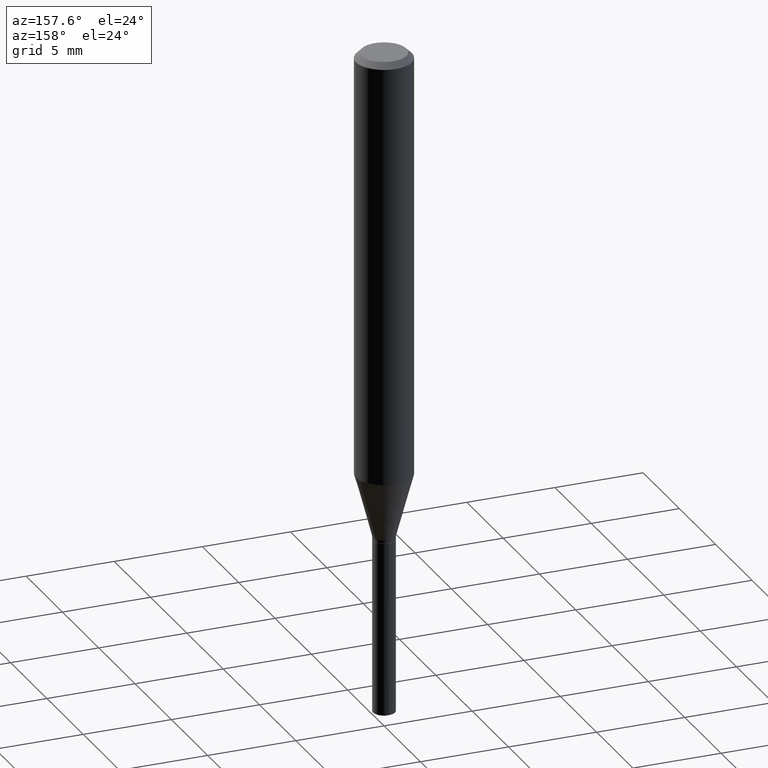
[diagram: clean part render]
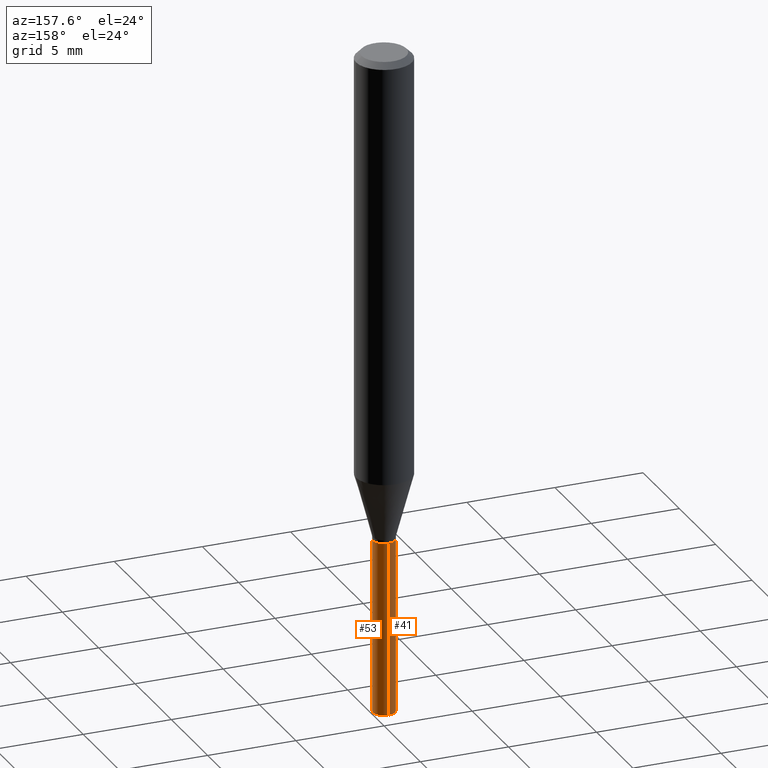
[diagram: same view with one multi-face feature highlighted, each face labeled with its STEP entity id]
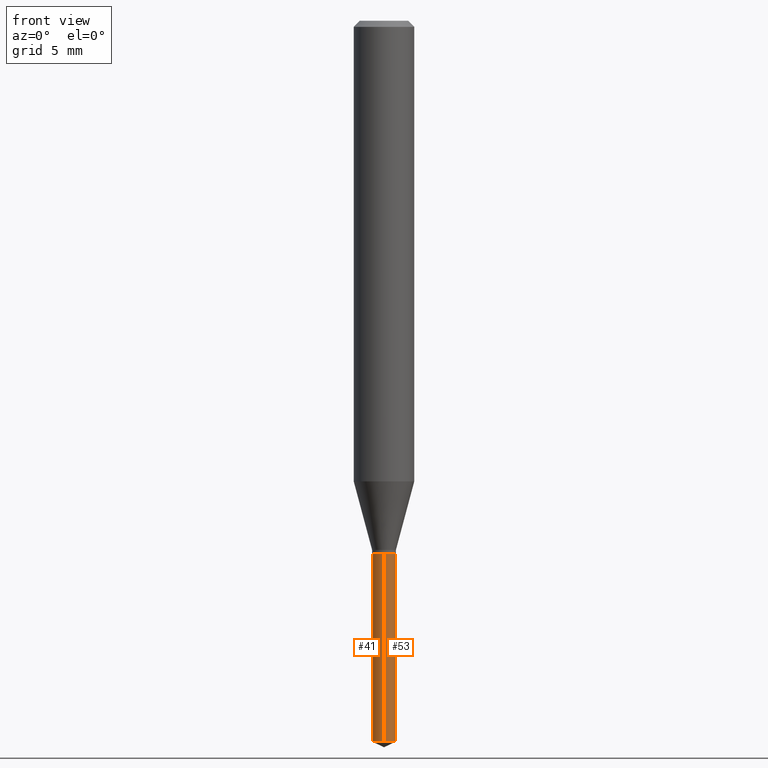
[diagram: same view with one multi-face feature highlighted, each face labeled with its STEP entity id]
A machine part, auxiliary view. The highlighted faces form ONE feature: a constant-radius fillet chain: 2 tangent blend faces with common blend radius 0.6248 mm. The faces share edges in the B-rep.
A second angle (front view) of the same feature is appended — it is thin or edge-on in the first view.
Their STEP definitions:
[1] entity #53 (Cylinder):
#5 = FACE_OUTER_BOUND ( 'NONE', #406, .T. ) ;
#6 = CYLINDRICAL_SURFACE ( 'NONE', #401, 0.02460000000000000034 ) ;
#12 = VECTOR ( 'NONE', #434, 39.37007874015748143 ) ;
#24 = VERTEX_POINT ( 'NONE', #418 ) ;
#28 = CIRCLE ( 'NONE', #308, 0.02460000000000000034 ) ;
#46 = LINE ( 'NONE', #429, #140 ) ;
#53 = ADVANCED_FACE ( 'NONE', ( #5 ), #6, .T. ) ;
#61 = CARTESIAN_POINT ( 'NONE',  ( 3.640123971338594615E-29, -5.197209093590707944E-15, -1.488528831609386982 ) ) ;
#73 = AXIS2_PLACEMENT_3D ( 'NONE', #354, #468, #120 ) ;
#74 = VERTEX_POINT ( 'NONE', #186 ) ;
#99 = EDGE_CURVE ( 'NONE', #24, #250, #46, .T. ) ;
#110 = DIRECTION ( 'NONE',  ( -6.982962677686265922E-15, -1.000000000000000000, 5.552536572488340164E-15 ) ) ;
#120 = DIRECTION ( 'NONE',  ( -6.982962677686265922E-15, -1.000000000000000000, 5.552536572488340164E-15 ) ) ;
#126 = CARTESIAN_POINT ( 'NONE',  ( 1.747935129970210836E-16, 0.02459999999999615966, -1.100000000000000089 ) ) ;
#140 = VECTOR ( 'NONE', #460, 39.37007874015748143 ) ;
#186 = CARTESIAN_POINT ( 'NONE',  ( 1.747935129970210343E-16, 0.02459999999999480658, -1.488528831609386982 ) ) ;
#189 = EDGE_CURVE ( 'NONE', #250, #254, #310, .T. ) ;
#205 = ORIENTED_EDGE ( 'NONE', *, *, #189, .F. ) ;
#206 = DIRECTION ( 'NONE',  ( -6.982962677686265922E-15, -1.000000000000000000, 0.000000000000000000 ) ) ;
#250 = VERTEX_POINT ( 'NONE', #305 ) ;
#254 = VERTEX_POINT ( 'NONE', #126 ) ;
#260 = EDGE_CURVE ( 'NONE', #24, #74, #28, .T. ) ;
#281 = CARTESIAN_POINT ( 'NONE',  ( 1.747935129970115187E-16, 0.02459999999999615966, -1.100000000000000089 ) ) ;
#305 = CARTESIAN_POINT ( 'NONE',  ( -1.717808818710552189E-16, -0.02460000000000384102, -1.099999999999999867 ) ) ;
#308 = AXIS2_PLACEMENT_3D ( 'NONE', #61, #405, #206 ) ;
#310 = CIRCLE ( 'NONE', #73, 0.02460000000000000034 ) ;
#331 = EDGE_CURVE ( 'NONE', #74, #254, #479, .T. ) ;
#354 = CARTESIAN_POINT ( 'NONE',  ( 2.690015686803650369E-29, -3.840629472727460101E-15, -1.100000000000000089 ) ) ;
#400 = ORIENTED_EDGE ( 'NONE', *, *, #331, .T. ) ;
#401 = AXIS2_PLACEMENT_3D ( 'NONE', #414, #456, #110 ) ;
#405 = DIRECTION ( 'NONE',  ( -2.445399690415121530E-29, 3.491580316559632610E-15, 1.000000000000000000 ) ) ;
#406 = EDGE_LOOP ( 'NONE', ( #437, #400, #205, #488 ) ) ;
#414 = CARTESIAN_POINT ( 'NONE',  ( 2.690015686803650369E-29, -3.840629472727460101E-15, -1.100000000000000089 ) ) ;
#418 = CARTESIAN_POINT ( 'NONE',  ( -1.717808818710457772E-16, -0.02460000000000520451, -1.488528831609386982 ) ) ;
#429 = CARTESIAN_POINT ( 'NONE',  ( -1.717808818710552189E-16, -0.02460000000000384102, -1.099999999999999867 ) ) ;
#434 = DIRECTION ( 'NONE',  ( -2.445399690415121810E-29, 3.491580316559632610E-15, 1.000000000000000000 ) ) ;
#437 = ORIENTED_EDGE ( 'NONE', *, *, #260, .T. ) ;
#456 = DIRECTION ( 'NONE',  ( -2.445399690415121530E-29, 3.491580316559632610E-15, 1.000000000000000000 ) ) ;
#460 = DIRECTION ( 'NONE',  ( -2.445399690415121810E-29, 3.491580316559632610E-15, 1.000000000000000000 ) ) ;
#468 = DIRECTION ( 'NONE',  ( -2.445399690415121530E-29, 3.491580316559632610E-15, 1.000000000000000000 ) ) ;
#479 = LINE ( 'NONE', #281, #12 ) ;
#488 = ORIENTED_EDGE ( 'NONE', *, *, #99, .F. ) ;
[2] entity #41 (Cylinder):
#12 = VECTOR ( 'NONE', #434, 39.37007874015748143 ) ;
#14 = EDGE_CURVE ( 'NONE', #74, #24, #143, .T. ) ;
#21 = AXIS2_PLACEMENT_3D ( 'NONE', #259, #224, #150 ) ;
#24 = VERTEX_POINT ( 'NONE', #418 ) ;
#35 = EDGE_CURVE ( 'NONE', #254, #250, #118, .T. ) ;
#41 = ADVANCED_FACE ( 'NONE', ( #380 ), #453, .T. ) ;
#46 = LINE ( 'NONE', #429, #140 ) ;
#74 = VERTEX_POINT ( 'NONE', #186 ) ;
#85 = ORIENTED_EDGE ( 'NONE', *, *, #331, .F. ) ;
#99 = EDGE_CURVE ( 'NONE', #24, #250, #46, .T. ) ;
#118 = CIRCLE ( 'NONE', #195, 0.02460000000000000034 ) ;
#126 = CARTESIAN_POINT ( 'NONE',  ( 1.747935129970210836E-16, 0.02459999999999615966, -1.100000000000000089 ) ) ;
#136 = EDGE_LOOP ( 'NONE', ( #85, #336, #279, #327 ) ) ;
#140 = VECTOR ( 'NONE', #460, 39.37007874015748143 ) ;
#143 = CIRCLE ( 'NONE', #304, 0.02460000000000000034 ) ;
#150 = DIRECTION ( 'NONE',  ( -6.982962677686265922E-15, -1.000000000000000000, 5.552536572488340164E-15 ) ) ;
#186 = CARTESIAN_POINT ( 'NONE',  ( 1.747935129970210343E-16, 0.02459999999999480658, -1.488528831609386982 ) ) ;
#195 = AXIS2_PLACEMENT_3D ( 'NONE', #215, #379, #373 ) ;
#215 = CARTESIAN_POINT ( 'NONE',  ( 2.690015686803650369E-29, -3.840629472727460101E-15, -1.100000000000000089 ) ) ;
#222 = CARTESIAN_POINT ( 'NONE',  ( 3.640123971338594615E-29, -5.197209093590707944E-15, -1.488528831609386982 ) ) ;
#224 = DIRECTION ( 'NONE',  ( -2.445399690415121530E-29, 3.491580316559632610E-15, 1.000000000000000000 ) ) ;
#250 = VERTEX_POINT ( 'NONE', #305 ) ;
#254 = VERTEX_POINT ( 'NONE', #126 ) ;
#259 = CARTESIAN_POINT ( 'NONE',  ( 2.690015686803650369E-29, -3.840629472727460101E-15, -1.100000000000000089 ) ) ;
#279 = ORIENTED_EDGE ( 'NONE', *, *, #99, .T. ) ;
#281 = CARTESIAN_POINT ( 'NONE',  ( 1.747935129970115187E-16, 0.02459999999999615966, -1.100000000000000089 ) ) ;
#297 = DIRECTION ( 'NONE',  ( -2.445399690415121530E-29, 3.491580316559632610E-15, 1.000000000000000000 ) ) ;
#304 = AXIS2_PLACEMENT_3D ( 'NONE', #222, #297, #411 ) ;
#305 = CARTESIAN_POINT ( 'NONE',  ( -1.717808818710552189E-16, -0.02460000000000384102, -1.099999999999999867 ) ) ;
#327 = ORIENTED_EDGE ( 'NONE', *, *, #35, .F. ) ;
#331 = EDGE_CURVE ( 'NONE', #74, #254, #479, .T. ) ;
#336 = ORIENTED_EDGE ( 'NONE', *, *, #14, .T. ) ;
#373 = DIRECTION ( 'NONE',  ( -6.982962677686265922E-15, -1.000000000000000000, 5.552536572488340164E-15 ) ) ;
#379 = DIRECTION ( 'NONE',  ( -2.445399690415121530E-29, 3.491580316559632610E-15, 1.000000000000000000 ) ) ;
#380 = FACE_OUTER_BOUND ( 'NONE', #136, .T. ) ;
#411 = DIRECTION ( 'NONE',  ( -6.982962677686265922E-15, -1.000000000000000000, 0.000000000000000000 ) ) ;
#418 = CARTESIAN_POINT ( 'NONE',  ( -1.717808818710457772E-16, -0.02460000000000520451, -1.488528831609386982 ) ) ;
#429 = CARTESIAN_POINT ( 'NONE',  ( -1.717808818710552189E-16, -0.02460000000000384102, -1.099999999999999867 ) ) ;
#434 = DIRECTION ( 'NONE',  ( -2.445399690415121810E-29, 3.491580316559632610E-15, 1.000000000000000000 ) ) ;
#453 = CYLINDRICAL_SURFACE ( 'NONE', #21, 0.02460000000000000034 ) ;
#460 = DIRECTION ( 'NONE',  ( -2.445399690415121810E-29, 3.491580316559632610E-15, 1.000000000000000000 ) ) ;
#479 = LINE ( 'NONE', #281, #12 ) ;